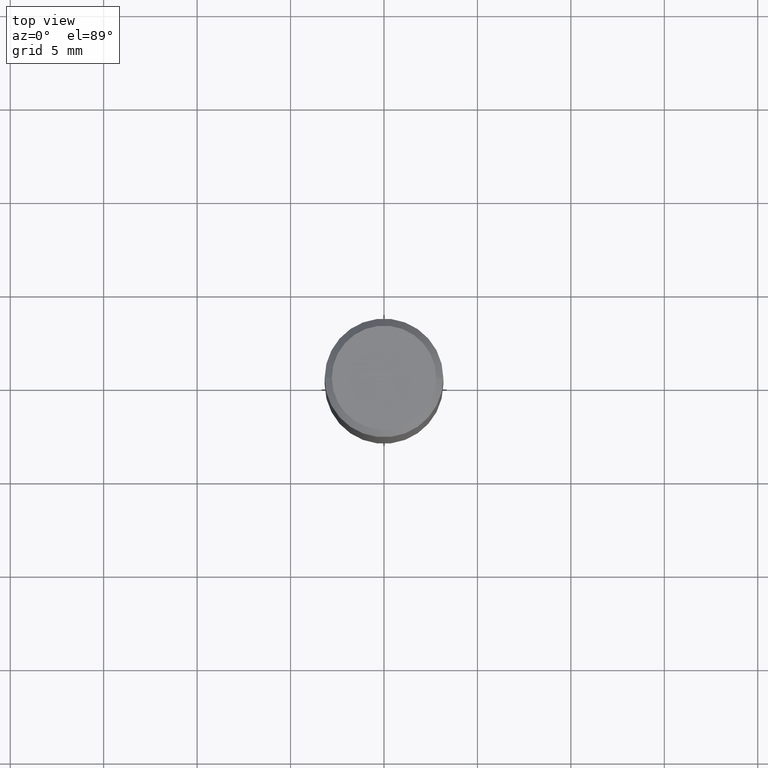
[diagram: clean part render]
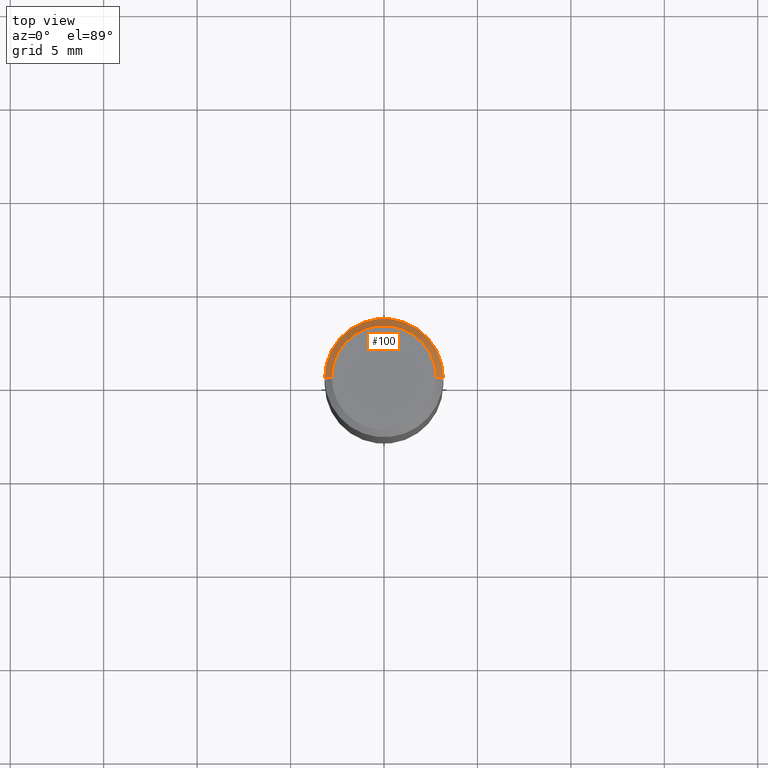
[diagram: same view with one face highlighted and labeled with its STEP entity id]
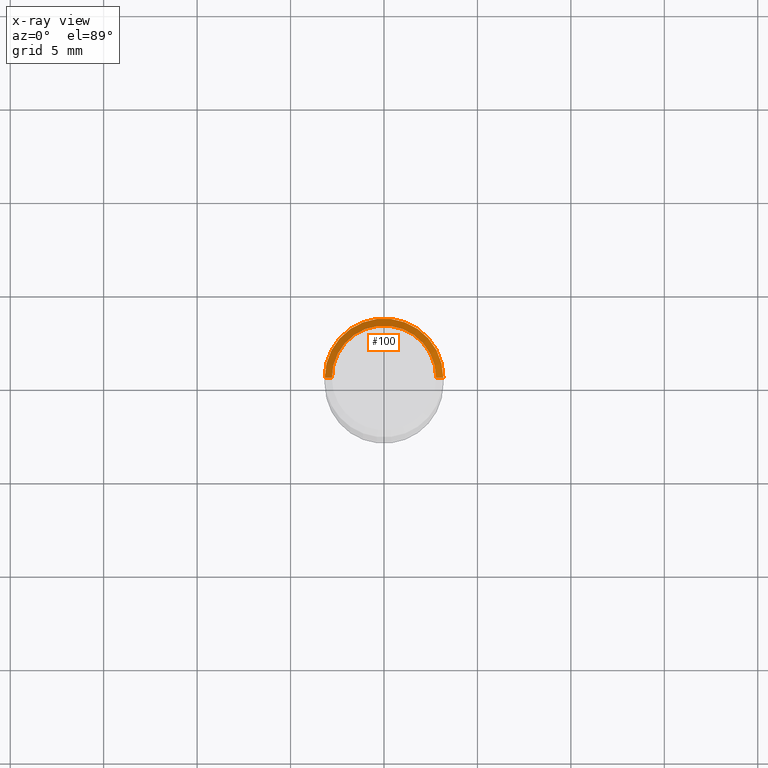
[diagram: x-ray of the same camera — body ghosted, the highlighted face saturated]
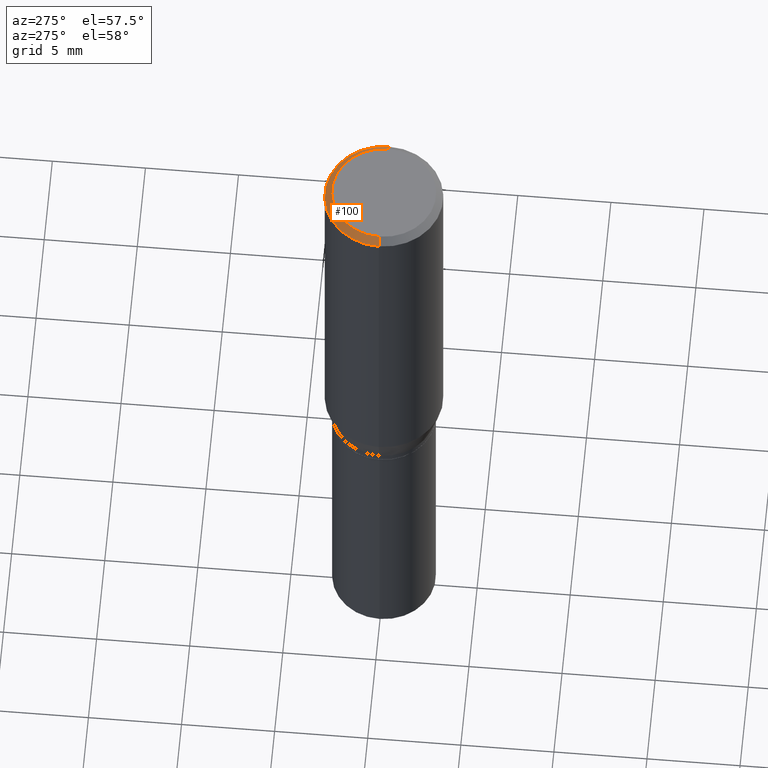
[diagram: same view with one face highlighted and labeled with its STEP entity id]
A machine part, top view. The second image highlights one B-rep face of the part: STEP entity #100.
The next image is the same camera in x-ray: the body ghosted, the highlighted face saturated — about 0% of this face is hidden behind the body in this view.
A second angle (auxiliary view) of the same face is appended — the face is thin or edge-on in the first view.
In plain terms, the highlighted conical surface has half-angle 45 deg.
Its self-contained STEP definition (entity closure, byte-faithful):
#1 = DIRECTION ( 'NONE',  ( 2.445468806185136597E-29, -3.491481338843145583E-15, -1.000000000000000000 ) ) ;
#7 = VERTEX_POINT ( 'NONE', #215 ) ;
#16 = EDGE_CURVE ( 'NONE', #287, #412, #378, .T. ) ;
#33 = EDGE_CURVE ( 'NONE', #445, #287, #37, .T. ) ;
#37 = LINE ( 'NONE', #419, #193 ) ;
#40 = DIRECTION ( 'NONE',  ( 1.000000000000000000, -6.982962677686266711E-15, 0.000000000000000000 ) ) ;
#100 = ADVANCED_FACE ( 'NONE', ( #368 ), #450, .T. ) ;
#101 = DIRECTION ( 'NONE',  ( -0.7071067811865475727, 2.468850131082257455E-15, -0.7071067811865474617 ) ) ;
#152 = EDGE_LOOP ( 'NONE', ( #336, #288, #156, #432 ) ) ;
#156 = ORIENTED_EDGE ( 'NONE', *, *, #16, .T. ) ;
#161 = DIRECTION ( 'NONE',  ( -2.445468806185136597E-29, 3.491481338843145583E-15, 1.000000000000000000 ) ) ;
#162 = EDGE_CURVE ( 'NONE', #445, #7, #201, .T. ) ;
#169 = LINE ( 'NONE', #353, #176 ) ;
#171 = DIRECTION ( 'NONE',  ( -2.445468806185136597E-29, 3.491481338843145583E-15, 1.000000000000000000 ) ) ;
#176 = VECTOR ( 'NONE', #101, 39.37007874015748143 ) ;
#193 = VECTOR ( 'NONE', #371, 39.37007874015748143 ) ;
#201 = CIRCLE ( 'NONE', #366, 0.1100000000000000006 ) ;
#215 = CARTESIAN_POINT ( 'NONE',  ( -0.1100000000000000006, 7.943120045868128186E-16, -7.674416657726847932E-18 ) ) ;
#243 = CARTESIAN_POINT ( 'NONE',  ( 0.1100000000000000006, -8.322946247794786836E-16, -7.674416657715788472E-18 ) ) ;
#287 = VERTEX_POINT ( 'NONE', #385 ) ;
#288 = ORIENTED_EDGE ( 'NONE', *, *, #33, .T. ) ;
#308 = CARTESIAN_POINT ( 'NONE',  ( 1.876754654212523840E-46, -2.679508254694119990E-32, -7.674416657721384454E-18 ) ) ;
#309 = AXIS2_PLACEMENT_3D ( 'NONE', #330, #1, #413 ) ;
#319 = CARTESIAN_POINT ( 'NONE',  ( -0.1250000000000000000, -5.377076571918697891E-16, -0.01499999999999999944 ) ) ;
#327 = EDGE_CURVE ( 'NONE', #7, #412, #169, .T. ) ;
#330 = CARTESIAN_POINT ( 'NONE',  ( 3.668203209277705088E-31, -5.237222008264718399E-17, -0.01499999999999999944 ) ) ;
#336 = ORIENTED_EDGE ( 'NONE', *, *, #162, .F. ) ;
#338 = DIRECTION ( 'NONE',  ( 1.000000000000000000, -6.982962677686266711E-15, 4.876001053725558154E-29 ) ) ;
#353 = CARTESIAN_POINT ( 'NONE',  ( -0.1250000000000000000, 8.204981146281362596E-16, -0.01499999999999999944 ) ) ;
#354 = CARTESIAN_POINT ( 'NONE',  ( 3.668203209277705088E-31, -5.237222008264718399E-17, -0.01499999999999999944 ) ) ;
#366 = AXIS2_PLACEMENT_3D ( 'NONE', #308, #161, #338 ) ;
#368 = FACE_OUTER_BOUND ( 'NONE', #152, .T. ) ;
#371 = DIRECTION ( 'NONE',  ( 0.7071067811865475727, -7.319954787623256045E-15, -0.7071067811865474617 ) ) ;
#378 = CIRCLE ( 'NONE', #399, 0.1250000000000000000 ) ;
#385 = CARTESIAN_POINT ( 'NONE',  ( 0.1250000000000000000, -9.252425547934304180E-16, -0.01499999999999999944 ) ) ;
#399 = AXIS2_PLACEMENT_3D ( 'NONE', #354, #171, #40 ) ;
#412 = VERTEX_POINT ( 'NONE', #319 ) ;
#413 = DIRECTION ( 'NONE',  ( -1.000000000000000000, 6.982962677686266711E-15, 0.000000000000000000 ) ) ;
#419 = CARTESIAN_POINT ( 'NONE',  ( 0.1250000000000000000, -9.099344698040885245E-16, -0.01499999999999999944 ) ) ;
#432 = ORIENTED_EDGE ( 'NONE', *, *, #327, .F. ) ;
#445 = VERTEX_POINT ( 'NONE', #243 ) ;
#450 = CONICAL_SURFACE ( 'NONE', #309, 0.1250000000000000000, 0.7853981633974483900 ) ;